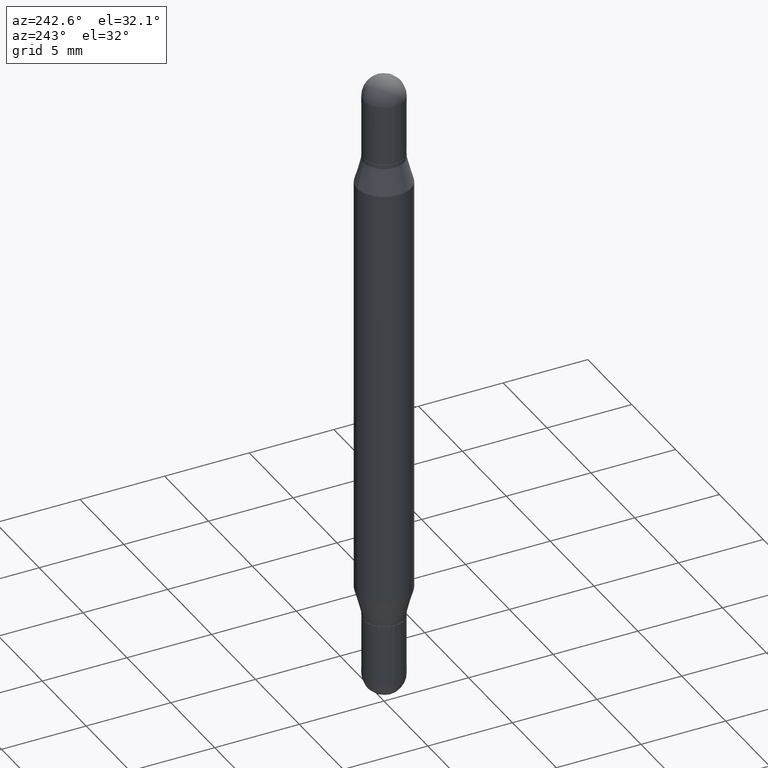
[diagram: clean part render]
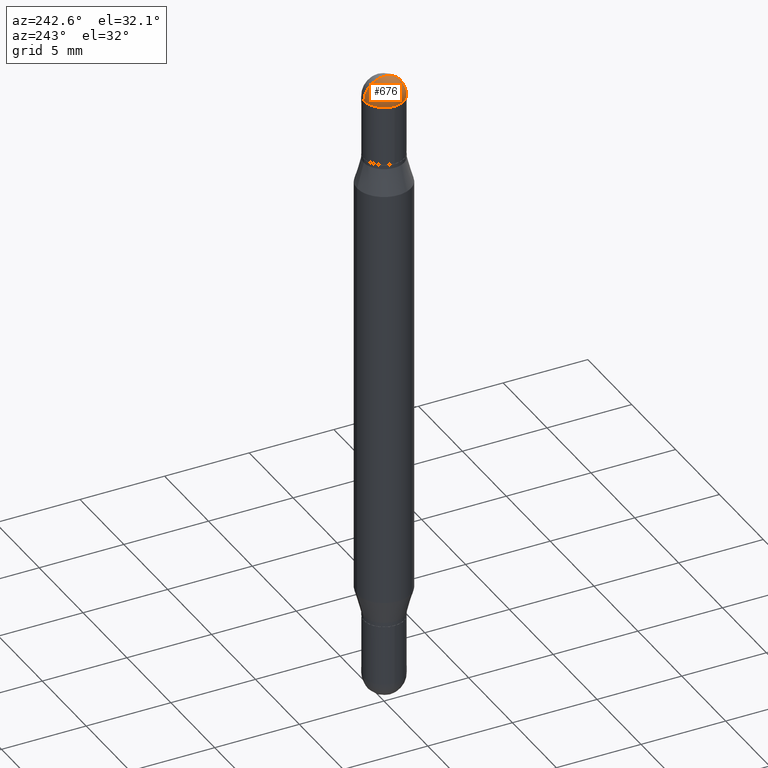
[diagram: same view with one face highlighted and labeled with its STEP entity id]
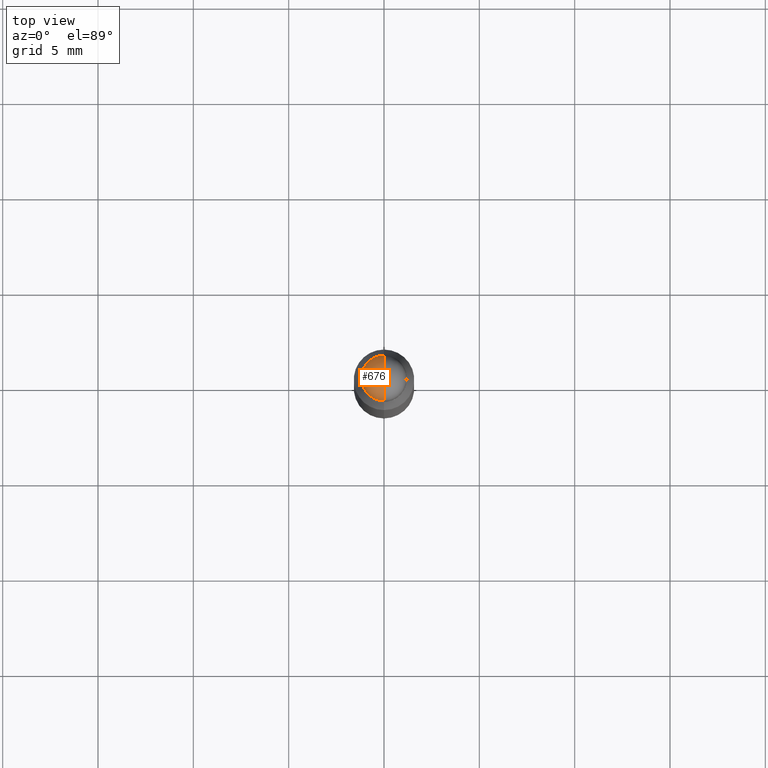
[diagram: same view with one face highlighted and labeled with its STEP entity id]
A machine part, auxiliary view. The second image highlights one B-rep face of the part: STEP entity #676.
A second angle (top view) of the same face is appended — the face is thin or edge-on in the first view.
In plain terms, the highlighted spherical surface has radius 1.1913 mm.
Its self-contained STEP definition (entity closure, byte-faithful):
#14 = DIRECTION ( 'NONE',  ( -6.982962677686265922E-15, -1.000000000000000000, 3.458496260635717735E-15 ) ) ;
#35 = ORIENTED_EDGE ( 'NONE', *, *, #369, .T. ) ;
#63 = CARTESIAN_POINT ( 'NONE',  ( 3.549499992371371099E-29, -1.778376658882507705E-16, -0.04690000000000025399 ) ) ;
#111 = DIRECTION ( 'NONE',  ( 1.000000000000000000, -6.982962677686266711E-15, 0.000000000000000000 ) ) ;
#147 = EDGE_CURVE ( 'NONE', #997, #1077, #1103, .T. ) ;
#151 = ORIENTED_EDGE ( 'NONE', *, *, #147, .F. ) ;
#156 = ORIENTED_EDGE ( 'NONE', *, *, #406, .T. ) ;
#194 = SPHERICAL_SURFACE ( 'NONE', #718, 0.04690000000000013602 ) ;
#200 = CIRCLE ( 'NONE', #334, 0.04690000000000013602 ) ;
#226 = CARTESIAN_POINT ( 'NONE',  ( -3.275009495834508474E-16, -0.04690000000000024011, -0.04690000000000036501 ) ) ;
#233 = CARTESIAN_POINT ( 'NONE',  ( 3.662187114433328241E-29, -1.751554413099070675E-17, -1.195183497228115035E-16 ) ) ;
#242 = EDGE_LOOP ( 'NONE', ( #151, #35, #156, #581 ) ) ;
#275 = DIRECTION ( 'NONE',  ( 1.000000000000000000, -6.982962677686265922E-15, -1.566701062080016245E-31 ) ) ;
#334 = AXIS2_PLACEMENT_3D ( 'NONE', #63, #838, #538 ) ;
#369 = EDGE_CURVE ( 'NONE', #997, #525, #200, .T. ) ;
#406 = EDGE_CURVE ( 'NONE', #525, #951, #868, .T. ) ;
#516 = DIRECTION ( 'NONE',  ( 2.445468806185136597E-29, 3.479614466977828254E-15, 1.000000000000000000 ) ) ;
#525 = VERTEX_POINT ( 'NONE', #1005 ) ;
#538 = DIRECTION ( 'NONE',  ( -6.860497997771530774E-15, -1.000000000000000000, 0.000000000000000000 ) ) ;
#581 = ORIENTED_EDGE ( 'NONE', *, *, #649, .T. ) ;
#592 = FACE_OUTER_BOUND ( 'NONE', #242, .T. ) ;
#611 = CIRCLE ( 'NONE', #688, 0.04689999999999999725 ) ;
#636 = DIRECTION ( 'NONE',  ( 2.445468806185136597E-29, 3.479614466977828254E-15, 1.000000000000000000 ) ) ;
#645 = AXIS2_PLACEMENT_3D ( 'NONE', #862, #275, #701 ) ;
#649 = EDGE_CURVE ( 'NONE', #951, #1077, #611, .T. ) ;
#652 = DIRECTION ( 'NONE',  ( 1.000000000000000000, -6.982962677686266711E-15, 0.000000000000000000 ) ) ;
#669 = AXIS2_PLACEMENT_3D ( 'NONE', #899, #636, #652 ) ;
#676 = ADVANCED_FACE ( 'NONE', ( #592 ), #194, .T. ) ;
#688 = AXIS2_PLACEMENT_3D ( 'NONE', #938, #516, #111 ) ;
#701 = DIRECTION ( 'NONE',  ( 6.982962677686265133E-15, 1.000000000000000000, 0.000000000000000000 ) ) ;
#718 = AXIS2_PLACEMENT_3D ( 'NONE', #952, #1044, #14 ) ;
#726 = CARTESIAN_POINT ( 'NONE',  ( -0.04689999999999999725, -9.408370971656128076E-17, -0.04690000000000053154 ) ) ;
#838 = DIRECTION ( 'NONE',  ( -1.000000000000000000, 6.860497997771530774E-15, 5.827999781331232286E-31 ) ) ;
#862 = CARTESIAN_POINT ( 'NONE',  ( 3.549499992371371099E-29, -1.778376658882507705E-16, -0.04690000000000025399 ) ) ;
#868 = CIRCLE ( 'NONE', #669, 0.04689999999999999725 ) ;
#899 = CARTESIAN_POINT ( 'NONE',  ( 3.553510722267622201E-29, -1.720940724002502970E-16, -0.04690000000000053154 ) ) ;
#938 = CARTESIAN_POINT ( 'NONE',  ( 3.553510722267622201E-29, -1.720940724002502970E-16, -0.04690000000000053154 ) ) ;
#951 = VERTEX_POINT ( 'NONE', #726 ) ;
#952 = CARTESIAN_POINT ( 'NONE',  ( 3.549499992371371099E-29, -1.778376658882507705E-16, -0.04690000000000025399 ) ) ;
#997 = VERTEX_POINT ( 'NONE', #233 ) ;
#1005 = CARTESIAN_POINT ( 'NONE',  ( 3.217573560955207797E-16, 0.04689999999999990010, -0.04690000000000069114 ) ) ;
#1044 = DIRECTION ( 'NONE',  ( -1.000000000000000000, 6.982962677686265922E-15, 1.566701062079987781E-31 ) ) ;
#1077 = VERTEX_POINT ( 'NONE', #226 ) ;
#1103 = CIRCLE ( 'NONE', #645, 0.04690000000000013602 ) ;